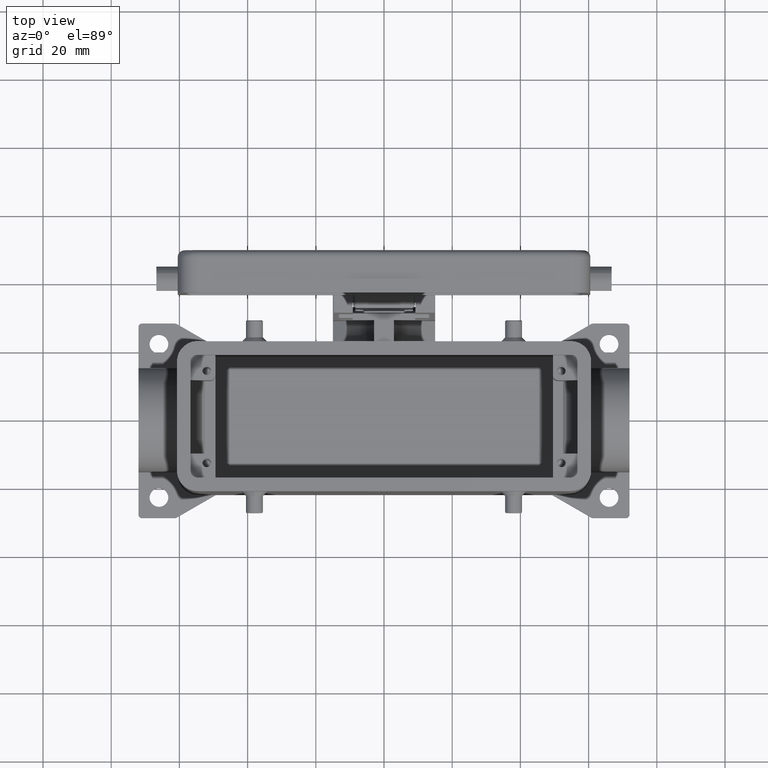
[diagram: clean part render]
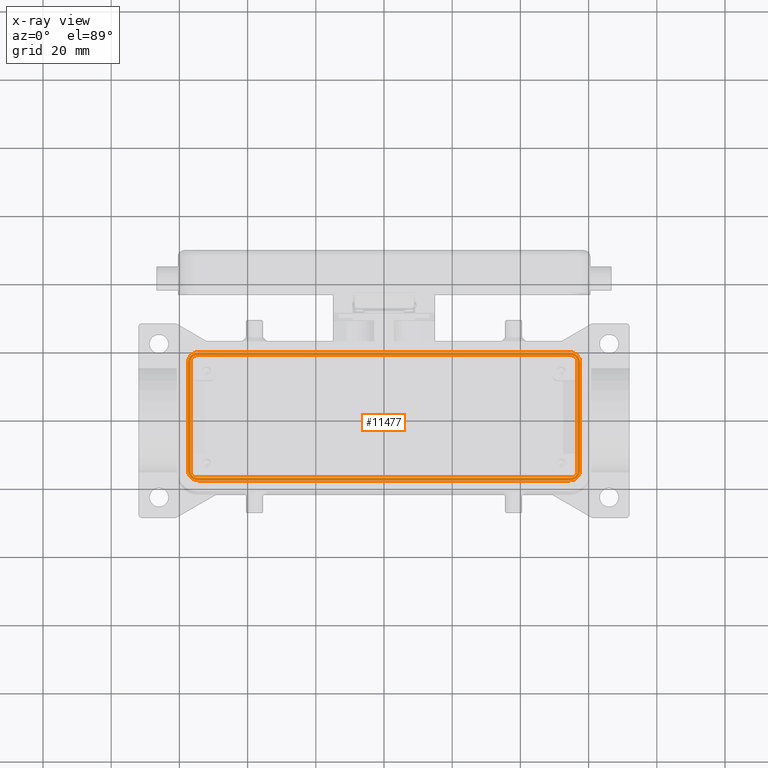
[diagram: x-ray — body ghosted, one internal face saturated and labeled with its STEP entity id]
A machine part, top view, then the same camera in x-ray: the body is ghosted and one INTERNAL B-rep face — a face not visible from any outside direction — is saturated and labeled: STEP entity #11477.
In plain terms, the highlighted planar face has unit normal (0, 0, 1).
Its self-contained STEP definition (entity closure, byte-faithful):
#6996=CARTESIAN_POINT('',(57.500000000000000,-15.749999999999991,23.500000000000000));
#6997=VERTEX_POINT('',#6996);
#7004=CARTESIAN_POINT('',(57.500000000000000,15.750000000000004,23.500000000000000));
#7005=VERTEX_POINT('',#7004);
#7006=CARTESIAN_POINT('',(57.500000000000000,15.750000000000004,23.500000000000000));
#7007=DIRECTION('',(0.0,-1.0,0.0));
#7008=VECTOR('',#7007,31.499999999999993);
#7009=LINE('',#7006,#7008);
#7010=EDGE_CURVE('',#7005,#6997,#7009,.T.);
#10822=CARTESIAN_POINT('',(-54.500000000000014,18.749999999999986,23.500000000000000));
#10823=VERTEX_POINT('',#10822);
#10830=CARTESIAN_POINT('',(-57.500000000000014,15.749999999999996,23.500000000000000));
#10831=VERTEX_POINT('',#10830);
#10832=CARTESIAN_POINT('',(-54.500000000000014,15.749999999999984,23.500000000000000));
#10833=DIRECTION('',(0.0,0.0,-1.0));
#10834=DIRECTION('',(0.0,1.0,0.0));
#10835=AXIS2_PLACEMENT_3D('',#10832,#10833,#10834);
#10836=CIRCLE('',#10835,3.000000000000000);
#10837=EDGE_CURVE('',#10831,#10823,#10836,.T.);
#10862=CARTESIAN_POINT('',(54.500000000000014,-18.749999999999989,23.500000000000000));
#10863=VERTEX_POINT('',#10862);
#10870=CARTESIAN_POINT('',(54.500000000000014,-15.749999999999991,23.500000000000000));
#10871=DIRECTION('',(0.0,0.0,-1.0));
#10872=DIRECTION('',(0.0,-1.0,0.0));
#10873=AXIS2_PLACEMENT_3D('',#10870,#10871,#10872);
#10874=CIRCLE('',#10873,3.000000000000000);
#10875=EDGE_CURVE('',#6997,#10863,#10874,.T.);
#11229=CARTESIAN_POINT('',(-54.750000000000007,18.0,23.500000000000007));
#11230=VERTEX_POINT('',#11229);
#11237=CARTESIAN_POINT('',(54.750000000000007,18.0,23.500000000000007));
#11238=VERTEX_POINT('',#11237);
#11239=CARTESIAN_POINT('',(54.750000000000007,18.0,23.500000000000007));
#11240=DIRECTION('',(-1.0,0.0,0.0));
#11241=VECTOR('',#11240,109.500000000000010);
#11242=LINE('',#11239,#11241);
#11243=EDGE_CURVE('',#11238,#11230,#11242,.T.);
#11260=CARTESIAN_POINT('',(-56.750000000000007,15.999999999999996,23.500000000000007));
#11261=VERTEX_POINT('',#11260);
#11268=CARTESIAN_POINT('',(-54.750000000000007,15.999999999999996,23.500000000000011));
#11269=DIRECTION('',(0.0,0.0,1.0));
#11270=DIRECTION('',(0.0,1.0,0.0));
#11271=AXIS2_PLACEMENT_3D('',#11268,#11269,#11270);
#11272=CIRCLE('',#11271,2.000000000000001);
#11273=EDGE_CURVE('',#11230,#11261,#11272,.T.);
#11285=CARTESIAN_POINT('',(-56.750000000000007,-15.999999999999996,23.500000000000007));
#11286=VERTEX_POINT('',#11285);
#11293=CARTESIAN_POINT('',(-56.750000000000007,15.999999999999996,23.500000000000007));
#11294=DIRECTION('',(0.0,-1.0,0.0));
#11295=VECTOR('',#11294,31.999999999999993);
#11296=LINE('',#11293,#11295);
#11297=EDGE_CURVE('',#11261,#11286,#11296,.T.);
#11309=CARTESIAN_POINT('',(-54.750000000000014,-18.000000000000004,23.500000000000007));
#11310=VERTEX_POINT('',#11309);
#11317=CARTESIAN_POINT('',(-54.750000000000014,-15.999999999999996,23.500000000000011));
#11318=DIRECTION('',(0.0,0.0,1.0));
#11319=DIRECTION('',(-1.0,0.0,0.0));
#11320=AXIS2_PLACEMENT_3D('',#11317,#11318,#11319);
#11321=CIRCLE('',#11320,2.000000000000001);
#11322=EDGE_CURVE('',#11286,#11310,#11321,.T.);
#11334=CARTESIAN_POINT('',(54.750000000000014,-18.000000000000004,23.500000000000007));
#11335=VERTEX_POINT('',#11334);
#11342=CARTESIAN_POINT('',(-54.750000000000014,-18.000000000000004,23.500000000000007));
#11343=DIRECTION('',(1.0,0.0,0.0));
#11344=VECTOR('',#11343,109.500000000000030);
#11345=LINE('',#11342,#11344);
#11346=EDGE_CURVE('',#11310,#11335,#11345,.T.);
#11358=CARTESIAN_POINT('',(56.750000000000014,-15.999999999999996,23.500000000000007));
#11359=VERTEX_POINT('',#11358);
#11366=CARTESIAN_POINT('',(54.750000000000014,-15.999999999999996,23.500000000000011));
#11367=DIRECTION('',(0.0,0.0,1.0));
#11368=DIRECTION('',(0.0,-1.0,0.0));
#11369=AXIS2_PLACEMENT_3D('',#11366,#11367,#11368);
#11370=CIRCLE('',#11369,2.000000000000001);
#11371=EDGE_CURVE('',#11335,#11359,#11370,.T.);
#11383=CARTESIAN_POINT('',(56.750000000000014,15.999999999999996,23.500000000000007));
#11384=VERTEX_POINT('',#11383);
#11391=CARTESIAN_POINT('',(56.750000000000014,-15.999999999999996,23.500000000000007));
#11392=DIRECTION('',(0.0,1.0,0.0));
#11393=VECTOR('',#11392,31.999999999999993);
#11394=LINE('',#11391,#11393);
#11395=EDGE_CURVE('',#11359,#11384,#11394,.T.);
#11408=CARTESIAN_POINT('',(54.750000000000014,15.999999999999996,23.500000000000011));
#11409=DIRECTION('',(0.0,0.0,1.0));
#11410=DIRECTION('',(1.0,0.0,0.0));
#11411=AXIS2_PLACEMENT_3D('',#11408,#11409,#11410);
#11412=CIRCLE('',#11411,2.000000000000001);
#11413=EDGE_CURVE('',#11384,#11238,#11412,.T.);
#11419=CARTESIAN_POINT('',(1.942890E-015,-4.857226E-016,23.500000000000011));
#11420=DIRECTION('',(0.0,0.0,1.0));
#11421=DIRECTION('',(1.0,0.0,0.0));
#11422=AXIS2_PLACEMENT_3D('',#11419,#11420,#11421);
#11423=PLANE('',#11422);
#11424=CARTESIAN_POINT('',(54.500000000000014,18.750000000000004,23.500000000000000));
#11425=VERTEX_POINT('',#11424);
#11426=CARTESIAN_POINT('',(54.500000000000014,15.750000000000004,23.500000000000000));
#11427=DIRECTION('',(0.0,0.0,-1.0));
#11428=DIRECTION('',(1.0,0.0,0.0));
#11429=AXIS2_PLACEMENT_3D('',#11426,#11427,#11428);
#11430=CIRCLE('',#11429,3.000000000000000);
#11431=EDGE_CURVE('',#11425,#7005,#11430,.T.);
#11432=ORIENTED_EDGE('',*,*,#11431,.T.);
#11433=ORIENTED_EDGE('',*,*,#7010,.T.);
#11434=ORIENTED_EDGE('',*,*,#10875,.T.);
#11435=CARTESIAN_POINT('',(-54.500000000000014,-18.750000000000007,23.500000000000000));
#11436=VERTEX_POINT('',#11435);
#11437=CARTESIAN_POINT('',(54.500000000000014,-18.749999999999989,23.500000000000000));
#11438=DIRECTION('',(-1.0,0.0,0.0));
#11439=VECTOR('',#11438,109.000000000000030);
#11440=LINE('',#11437,#11439);
#11441=EDGE_CURVE('',#10863,#11436,#11440,.T.);
#11442=ORIENTED_EDGE('',*,*,#11441,.T.);
#11443=CARTESIAN_POINT('',(-57.500000000000014,-15.750000000000011,23.500000000000000));
#11444=VERTEX_POINT('',#11443);
#11445=CARTESIAN_POINT('',(-54.500000000000014,-15.750000000000011,23.500000000000000));
#11446=DIRECTION('',(0.0,0.0,-1.0));
#11447=DIRECTION('',(-1.0,0.0,0.0));
#11448=AXIS2_PLACEMENT_3D('',#11445,#11446,#11447);
#11449=CIRCLE('',#11448,3.000000000000000);
#11450=EDGE_CURVE('',#11436,#11444,#11449,.T.);
#11451=ORIENTED_EDGE('',*,*,#11450,.T.);
#11452=CARTESIAN_POINT('',(-57.500000000000014,-15.750000000000011,23.500000000000000));
#11453=DIRECTION('',(0.0,1.0,0.0));
#11454=VECTOR('',#11453,31.500000000000007);
#11455=LINE('',#11452,#11454);
#11456=EDGE_CURVE('',#11444,#10831,#11455,.T.);
#11457=ORIENTED_EDGE('',*,*,#11456,.T.);
#11458=ORIENTED_EDGE('',*,*,#10837,.T.);
#11459=CARTESIAN_POINT('',(-54.500000000000014,18.749999999999986,23.500000000000000));
#11460=DIRECTION('',(1.0,0.0,0.0));
#11461=VECTOR('',#11460,109.000000000000030);
#11462=LINE('',#11459,#11461);
#11463=EDGE_CURVE('',#10823,#11425,#11462,.T.);
#11464=ORIENTED_EDGE('',*,*,#11463,.T.);
#11465=EDGE_LOOP('',(#11432,#11433,#11434,#11442,#11451,#11457,#11458,#11464));
#11466=FACE_OUTER_BOUND('',#11465,.T.);
#11467=ORIENTED_EDGE('',*,*,#11413,.T.);
#11468=ORIENTED_EDGE('',*,*,#11243,.T.);
#11469=ORIENTED_EDGE('',*,*,#11273,.T.);
#11470=ORIENTED_EDGE('',*,*,#11297,.T.);
#11471=ORIENTED_EDGE('',*,*,#11322,.T.);
#11472=ORIENTED_EDGE('',*,*,#11346,.T.);
#11473=ORIENTED_EDGE('',*,*,#11371,.T.);
#11474=ORIENTED_EDGE('',*,*,#11395,.T.);
#11475=EDGE_LOOP('',(#11467,#11468,#11469,#11470,#11471,#11472,#11473,#11474));
#11476=FACE_BOUND('',#11475,.T.);
#11477=ADVANCED_FACE('',(#11466,#11476),#11423,.F.);